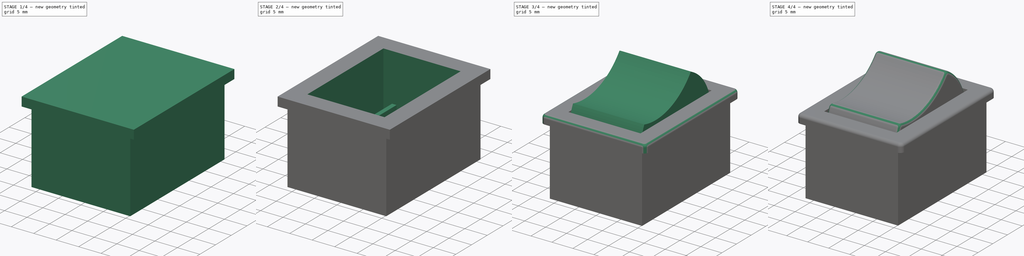
[diagram: build sequence overview — one tinted view per stage of 4, left to right]
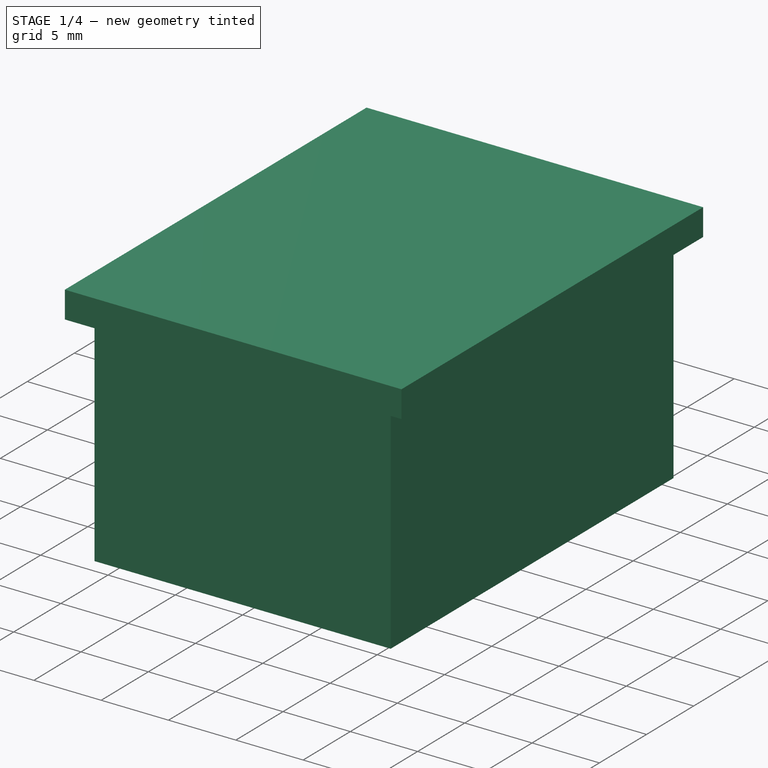
[diagram: stage 1 of 4 — iso view after this stage's code; geometry added in this stage tinted green]
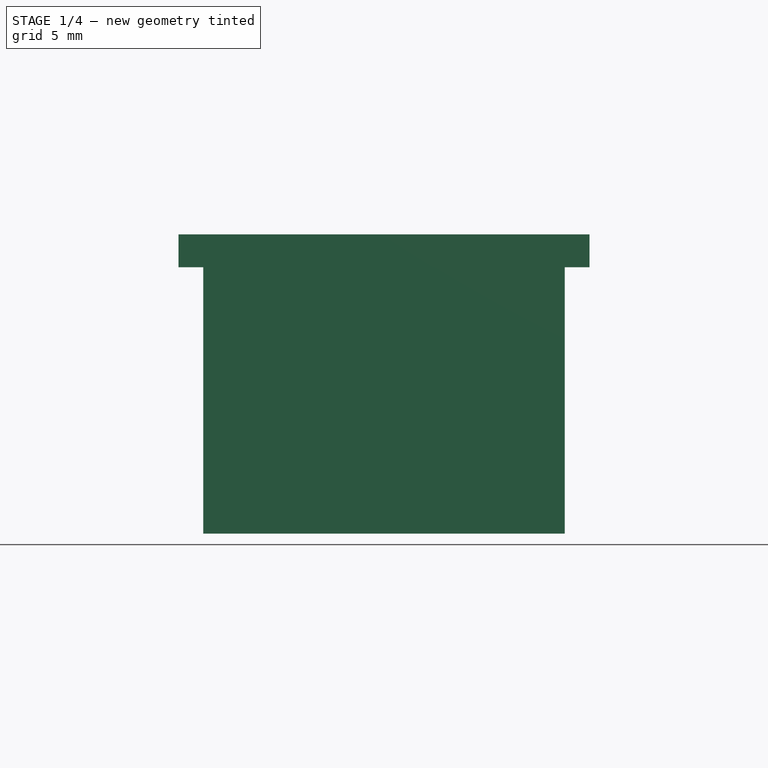
[diagram: stage 1 of 4 — front view after this stage's code; geometry added in this stage tinted green]
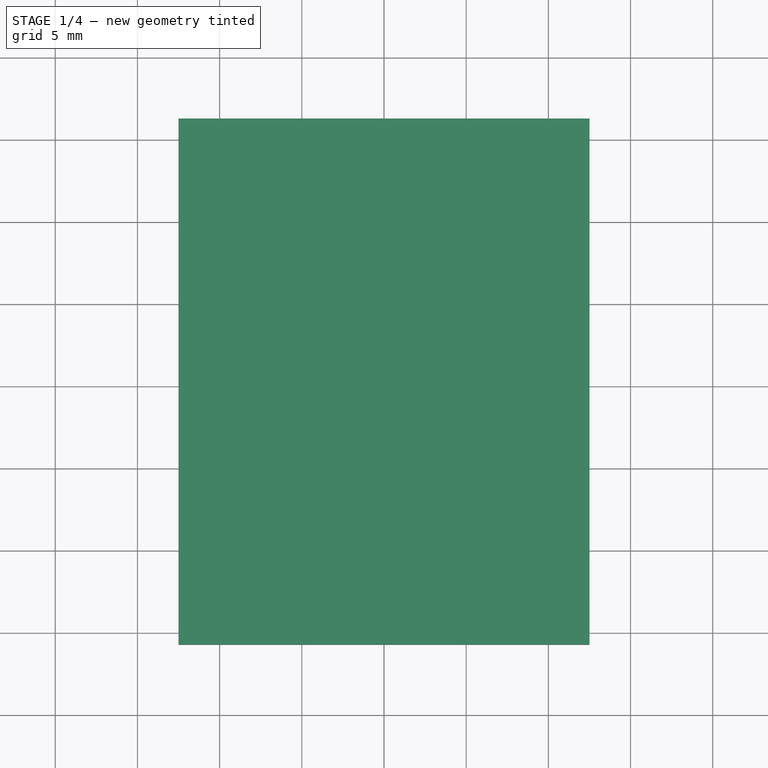
[diagram: stage 1 of 4 — top view after this stage's code; geometry added in this stage tinted green]
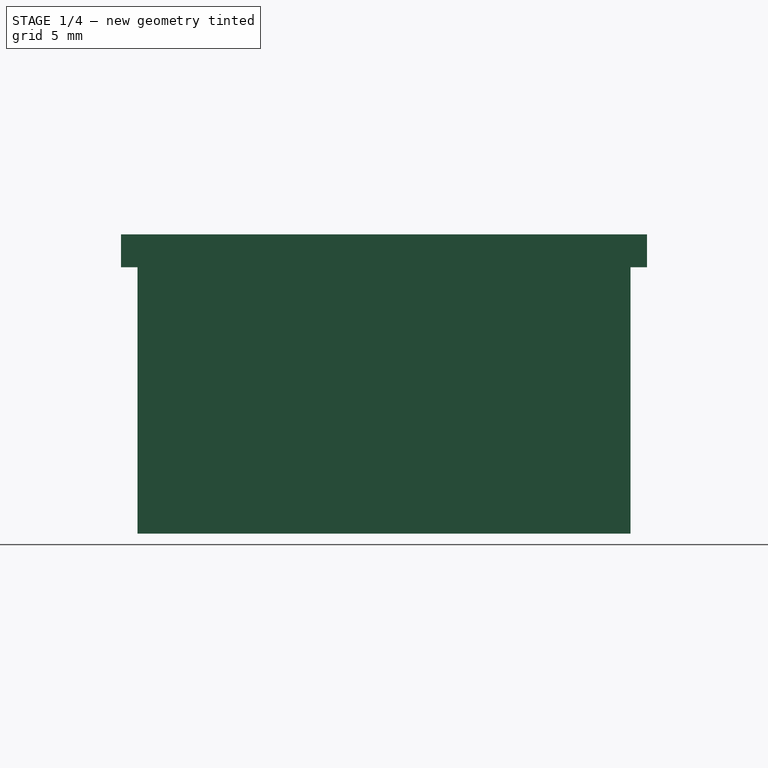
[diagram: stage 1 of 4 — right view after this stage's code; geometry added in this stage tinted green]
FCSTD DOCUMENT
Label: rocker_switch
objects: Sketcher::SketchObject×5, PartDesign::Pad×4, PartDesign::Fillet×4, PartDesign::Pocket×1
note: 19 computed .brp shape members not serialized (recipe doc carries the construction recipe); baked Part::Feature solids carry a one-line shape summary decoded from their .brp

FEATURE [Sketcher::SketchObject] Sketch
  sketch-geometry (4):
    g0: LineSegment StartX=-12.5 StartY=16 StartZ=0 EndX=12.5 EndY=16 EndZ=0
    g1: LineSegment StartX=12.5 StartY=16 StartZ=0 EndX=12.5 EndY=-16 EndZ=0
    g2: LineSegment StartX=12.5 StartY=-16 StartZ=0 EndX=-12.5 EndY=-16 EndZ=0
    g3: LineSegment StartX=-12.5 StartY=-16 StartZ=0 EndX=-12.5 EndY=16 EndZ=0
  constraints (11):
    c: Coincident(g0,g1)
    c: Coincident(g1,g2)
    c: Coincident(g2,g3)
    c: Coincident(g3,g0)
    c: Horizontal(g0)
    c: Horizontal(g2)
    c: Vertical(g1)
    c: Vertical(g3)
    c: Symmetric(g0,g1,g-1)
    c: DistanceY(g1) = -32
    c: DistanceX(g0) = 25
FEATURE [PartDesign::Pad] Pad
  Length = 2
  Length2 = 100
  Sketch = -> Sketch
  Type = 0
FEATURE [Sketcher::SketchObject] Sketch001
  Placement = pos=(0,0,0) rot=(1,0,0;3.14159rad)
  Support = -> Pad [Face5]
  sketch-geometry (4):
    g0: LineSegment StartX=-11 StartY=15 StartZ=0 EndX=11 EndY=15 EndZ=0
    g1: LineSegment StartX=11 StartY=15 StartZ=0 EndX=11 EndY=-15 EndZ=0
    g2: LineSegment StartX=11 StartY=-15 StartZ=0 EndX=-11 EndY=-15 EndZ=0
    g3: LineSegment StartX=-11 StartY=-15 StartZ=0 EndX=-11 EndY=15 EndZ=0
  constraints (11):
    c: Coincident(g0,g1)
    c: Coincident(g1,g2)
    c: Coincident(g2,g3)
    c: Coincident(g3,g0)
    c: Horizontal(g0)
    c: Horizontal(g2)
    c: Vertical(g1)
    c: Vertical(g3)
    c: Symmetric(g0,g1,g-1)
    c: DistanceX(g0) = 22
    c: DistanceY(g1) = -30
FEATURE [PartDesign::Pad] Pad001
  Length = 16.2
  Length2 = 100
  Sketch = -> Sketch001
  Type = 0
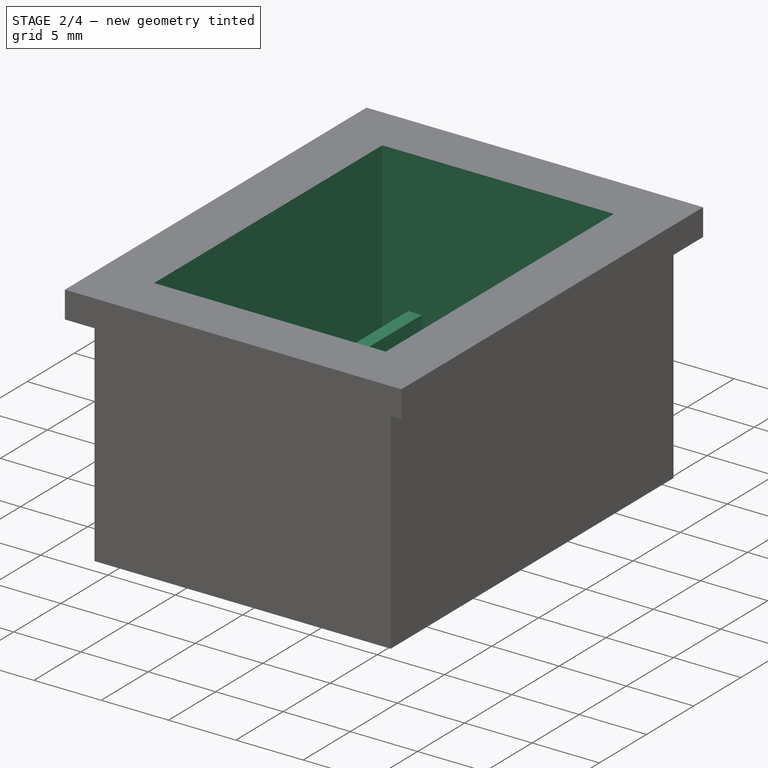
[diagram: stage 2 of 4 — iso view after this stage's code; geometry added in this stage tinted green]
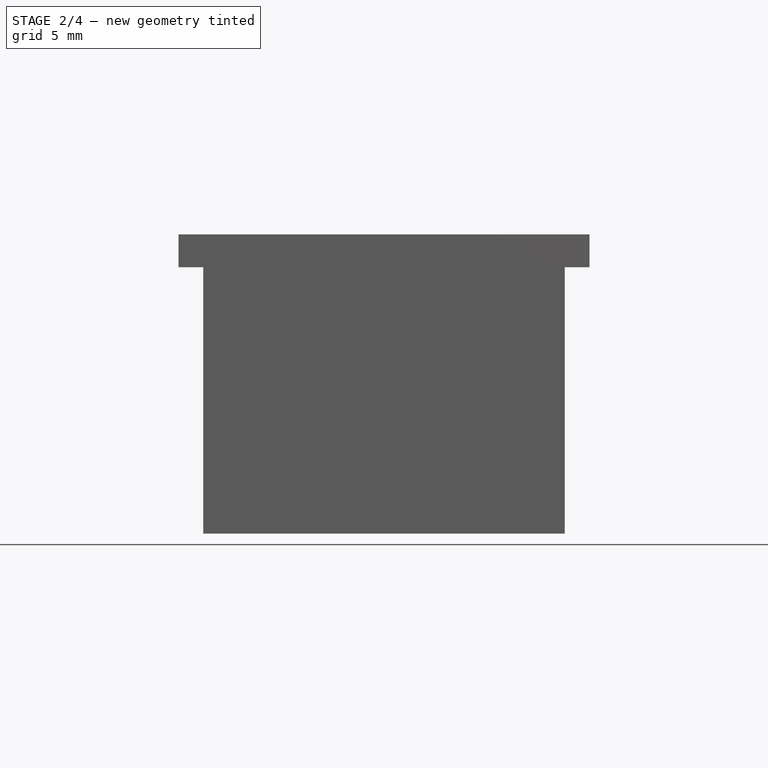
[diagram: stage 2 of 4 — front view after this stage's code; geometry added in this stage tinted green]
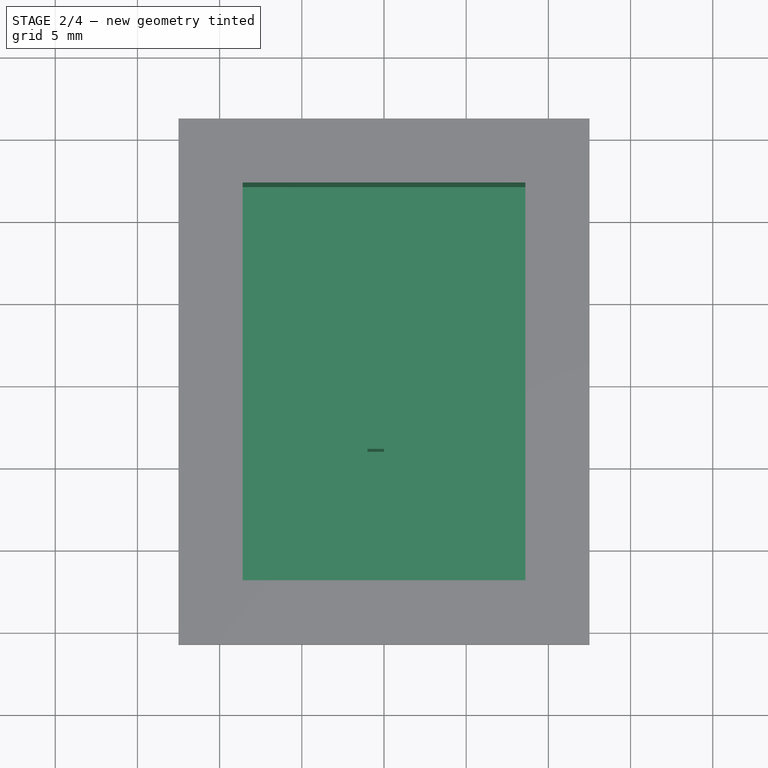
[diagram: stage 2 of 4 — top view after this stage's code; geometry added in this stage tinted green]
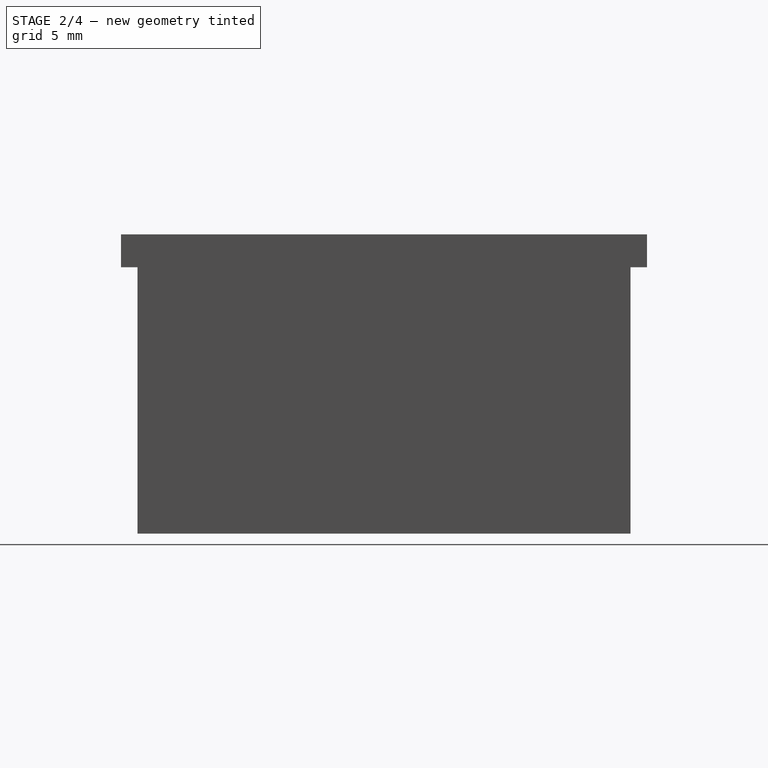
[diagram: stage 2 of 4 — right view after this stage's code; geometry added in this stage tinted green]
FEATURE [Sketcher::SketchObject] Sketch002
  ExternalGeometry = -> [Pad001]
  Placement = pos=(0,0,2) rot=(0,0,1;0rad)
  Support = -> Pad001 [Face5]
  sketch-geometry (4):
    g0: LineSegment StartX=-8.6 StartY=12.1 StartZ=0 EndX=8.6 EndY=12.1 EndZ=0
    g1: LineSegment StartX=8.6 StartY=12.1 StartZ=0 EndX=8.6 EndY=-12.1 EndZ=0
    g2: LineSegment StartX=8.6 StartY=-12.1 StartZ=0 EndX=-8.6 EndY=-12.1 EndZ=0
    g3: LineSegment StartX=-8.6 StartY=-12.1 StartZ=0 EndX=-8.6 EndY=12.1 EndZ=0
  constraints (11):
    c: Coincident(g0,g1)
    c: Coincident(g1,g2)
    c: Coincident(g2,g3)
    c: Coincident(g3,g0)
    c: Horizontal(g0)
    c: Horizontal(g2)
    c: Vertical(g1)
    c: Vertical(g3)
    c: Symmetric(g0,g1,g-1)
    c: DistanceY(g1,g-3) = -3.9
    c: DistanceX(g0) = 17.2
FEATURE [PartDesign::Pocket] Pocket
  Length = 16
  Sketch = -> Sketch002
  Type = 0
FEATURE [Sketcher::SketchObject] Sketch003
  Placement = pos=(0,0,-14) rot=(0,0,1;0rad)
  Support = -> Pocket [Face16]
  sketch-geometry (4):
    g0: LineSegment StartX=-1 StartY=4 StartZ=0 EndX=0 EndY=4 EndZ=0
    g1: LineSegment StartX=0 StartY=4 StartZ=0 EndX=0 EndY=-4 EndZ=0
    g2: LineSegment StartX=0 StartY=-4 StartZ=0 EndX=-1 EndY=-4 EndZ=0
    g3: LineSegment StartX=-1 StartY=-4 StartZ=0 EndX=-1 EndY=4 EndZ=0
  constraints (12):
    c: Coincident(g0,g1)
    c: Coincident(g1,g2)
    c: Coincident(g2,g3)
    c: Coincident(g3,g0)
    c: Horizontal(g0)
    c: Horizontal(g2)
    c: Vertical(g1)
    c: Vertical(g3)
    c: Symmetric(g2,g0,g-1)
    c: PointOnObject(g0,g-2)
    c: DistanceY(g1) = -8
    c: DistanceX(g0) = 1
FEATURE [PartDesign::Pad] Pad002
  Length = 10
  Length2 = 100
  Sketch = -> Sketch003
  Type = 0
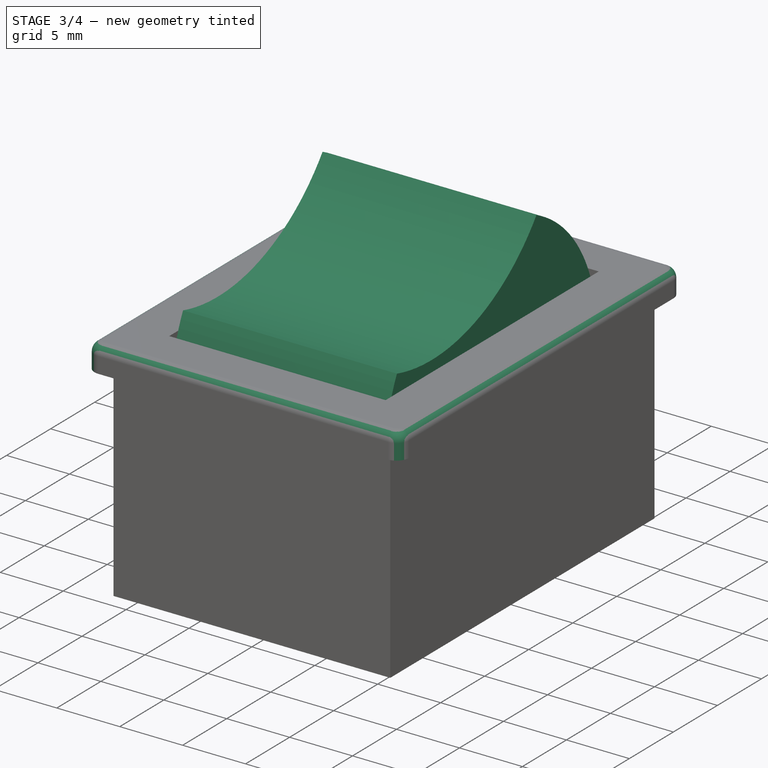
[diagram: stage 3 of 4 — iso view after this stage's code; geometry added in this stage tinted green]
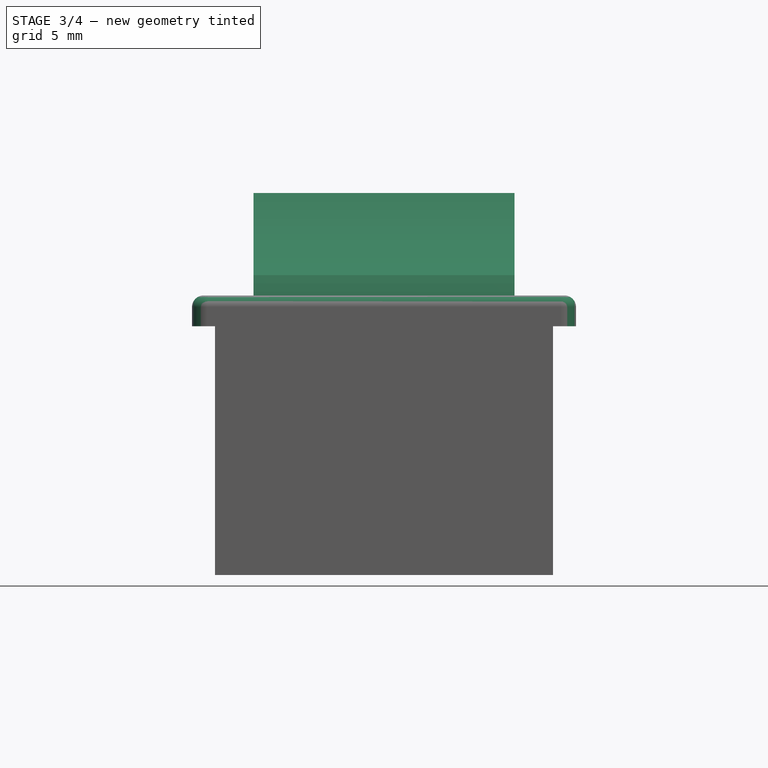
[diagram: stage 3 of 4 — front view after this stage's code; geometry added in this stage tinted green]
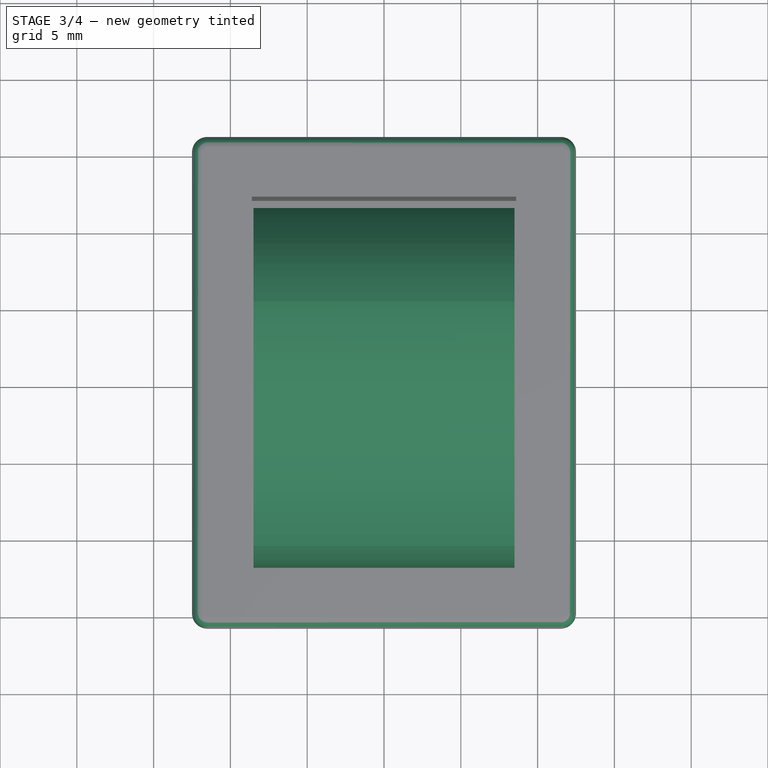
[diagram: stage 3 of 4 — top view after this stage's code; geometry added in this stage tinted green]
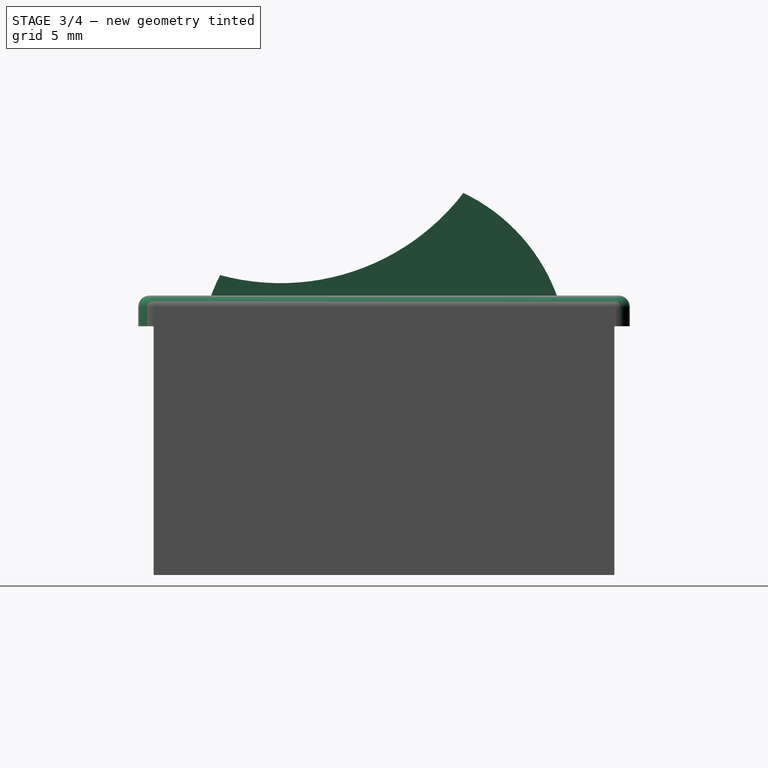
[diagram: stage 3 of 4 — right view after this stage's code; geometry added in this stage tinted green]
FEATURE [Sketcher::SketchObject] Sketch004
  Placement = pos=(0,0,0) rot=(0.57735,0.57735,0.57735;2.0944rad)
  Support = -> Pad002 [Face19]
  sketch-geometry (10):
    g0: LineSegment StartX=-1.42122 StartY=-2.62841 StartZ=0 EndX=0.611463 EndY=-8.6506 EndZ=0
    g1: ArcOfCircle CenterX=2.03269 CenterY=-8.17089 CenterZ=0 NormalX=0 NormalY=0 NormalZ=1 Radius=1.5 StartAngle=3.46712 EndAngle=6.60871
    g2: LineSegment StartX=3.45391 StartY=-7.69118 StartZ=0 EndX=1.42122 EndY=-1.66899 EndZ=0
    g3: LineSegment StartX=1.42122 StartY=-1.66899 StartZ=0 EndX=11.3627 EndY=1.6866 EndZ=0
    g4: LineSegment StartX=-1.42122 StartY=-2.62841 StartZ=0 EndX=-11.3627 EndY=-5.984 EndZ=0
    g5: LineSegment [constr] StartX=-1.42122 StartY=-2.62841 StartZ=0 EndX=1.42122 EndY=-1.66899 EndZ=0
    g6: ArcOfCircle CenterX=0 CenterY=-2.1487 CenterZ=0 NormalX=0 NormalY=0 NormalZ=1 Radius=11.9925 StartAngle=0.325526 EndAngle=1.12518
    g7: ArcOfCircle CenterX=-6.73368 CenterY=17.801 CenterZ=0 NormalX=0 NormalY=0 NormalZ=1 Radius=15 StartAngle=4.44688 EndAngle=5.62895
    g8: ArcOfCircle CenterX=0 CenterY=-2.1487 CenterZ=0 NormalX=0 NormalY=0 NormalZ=1 Radius=11.9925 StartAngle=2.66747 EndAngle=3.46712
    g9: LineSegment [constr] StartX=-10.6697 StartY=3.32661 StartZ=0 EndX=5.16901 EndY=8.67269 EndZ=0
  constraints (28):
    c: Tangent(g0,g1)
    c: Tangent(g1,g2)
    c: Parallel(g2,g0)
    c: Equal(g2,g0)
    c: Coincident(g3,g2)
    c: Coincident(g4,g0)
    c: Perpendicular(g4,g0)
    c: Tangent(g4,g3)
    c: Equal(g4,g3)
    c: Coincident(g5,g0)
    c: Coincident(g5,g2)
    c: Coincident(g6,g3)
    c: DistanceX(g3) = 11.3627
    c: DistanceY(g3) = 1.6866
    c: Angle(g4) = -2.81607
    c: Coincident(g8,g6)
    c: Coincident(g8,g4)
    c: Coincident(g8,g7)
    c: Coincident(g9,g7)
    c: Coincident(g9,g6)
    c: Parallel(g9,g4)
    c: Symmetric(g2,g0,g6)
    c: Radius(g7) = 15
    c: Coincident(g7,g6)
    c: Distance(g7,g4) = 8.6
    c: PointOnObject(g6,g-2)
    c: Radius(g1) = 1.5
    c: Distance(g2) = 6.35598
FEATURE [PartDesign::Pad] Pad003
  Length = 17
  Length2 = 100
  Midplane = true
  Sketch = -> Sketch004
  Type = 0
FEATURE [PartDesign::Fillet] Fillet
  Base = -> Pad003 [Edge5,Edge8,Edge2,Edge1]
  Radius = 1
FEATURE [PartDesign::Fillet] Fillet001
  Base = -> Fillet [Edge24]
  Radius = 0.75
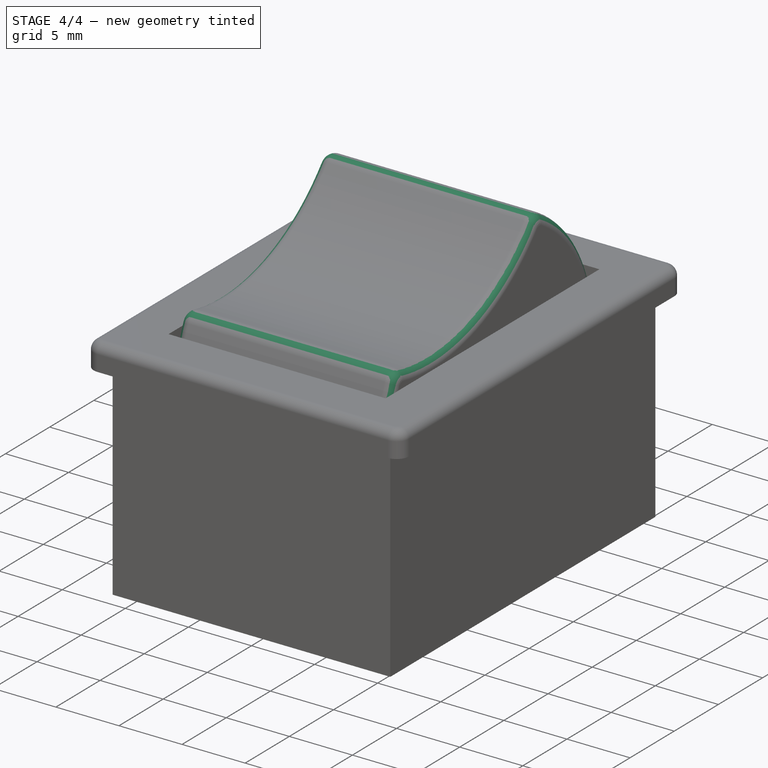
[diagram: stage 4 of 4 — iso view after this stage's code; geometry added in this stage tinted green]
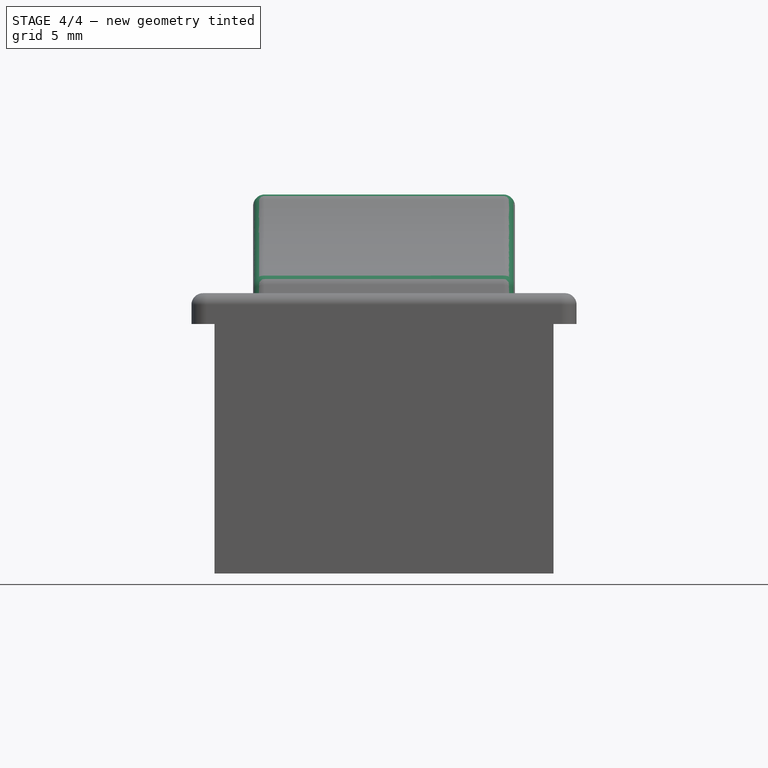
[diagram: stage 4 of 4 — front view after this stage's code; geometry added in this stage tinted green]
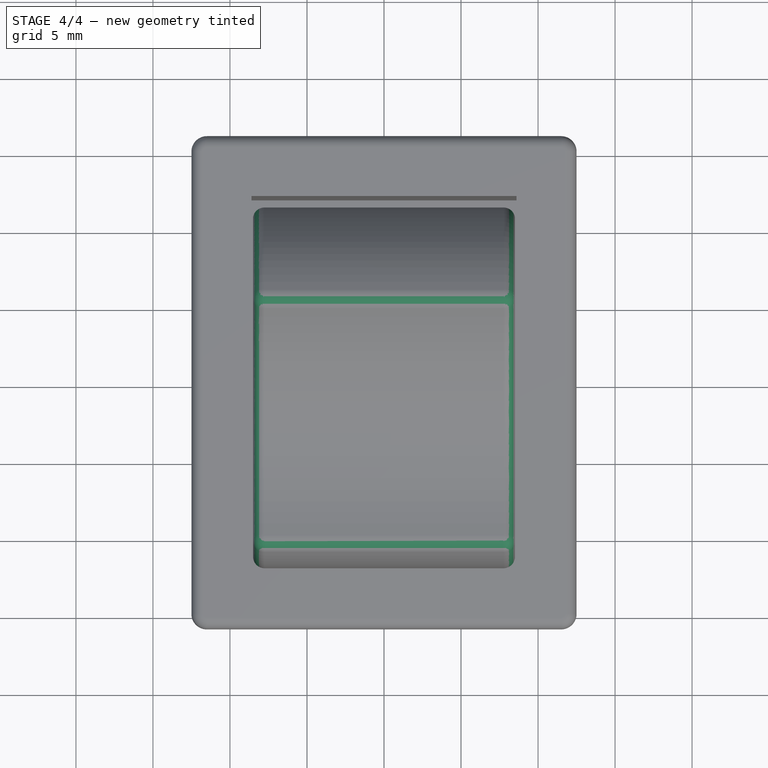
[diagram: stage 4 of 4 — top view after this stage's code; geometry added in this stage tinted green]
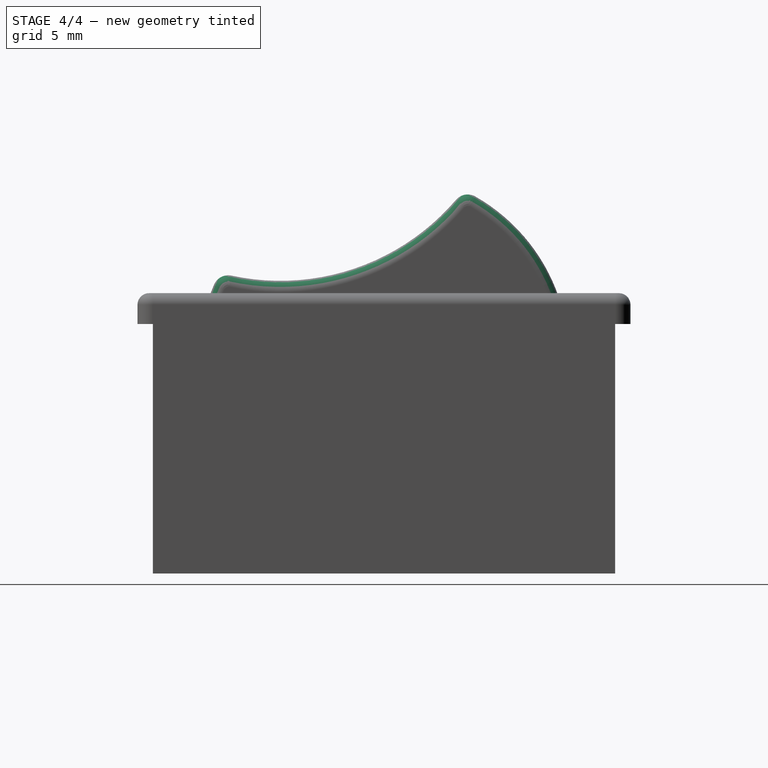
[diagram: stage 4 of 4 — right view after this stage's code; geometry added in this stage tinted green]
FEATURE [PartDesign::Fillet] Fillet002
  Base = -> Fillet001 [Edge111,Edge112]
  Radius = 1
FEATURE [PartDesign::Fillet] Fillet003
  Base = -> Fillet002 [Edge19,Edge4]
  Radius = 0.75
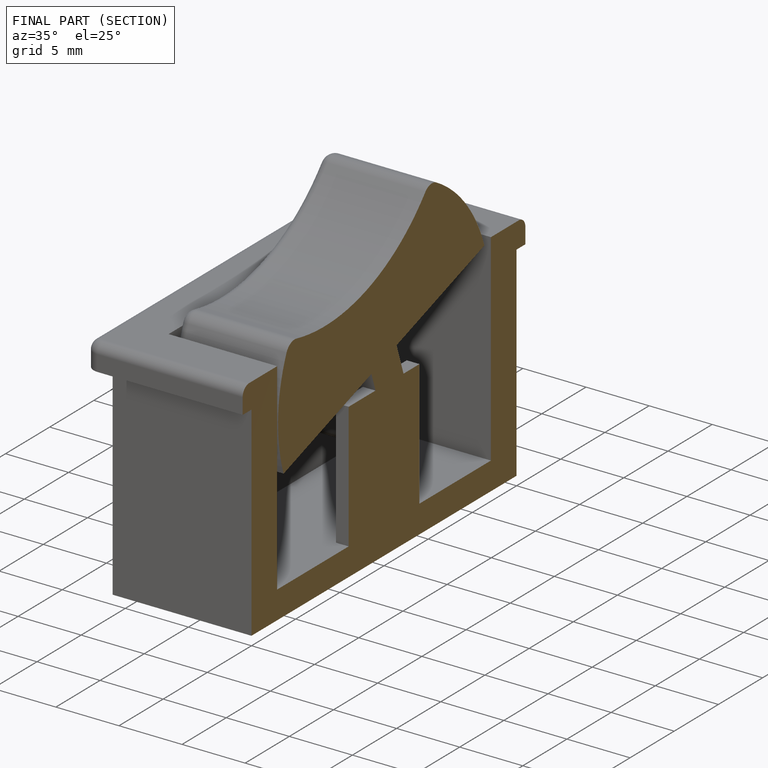
[diagram: finished part — half-section view (interior)]
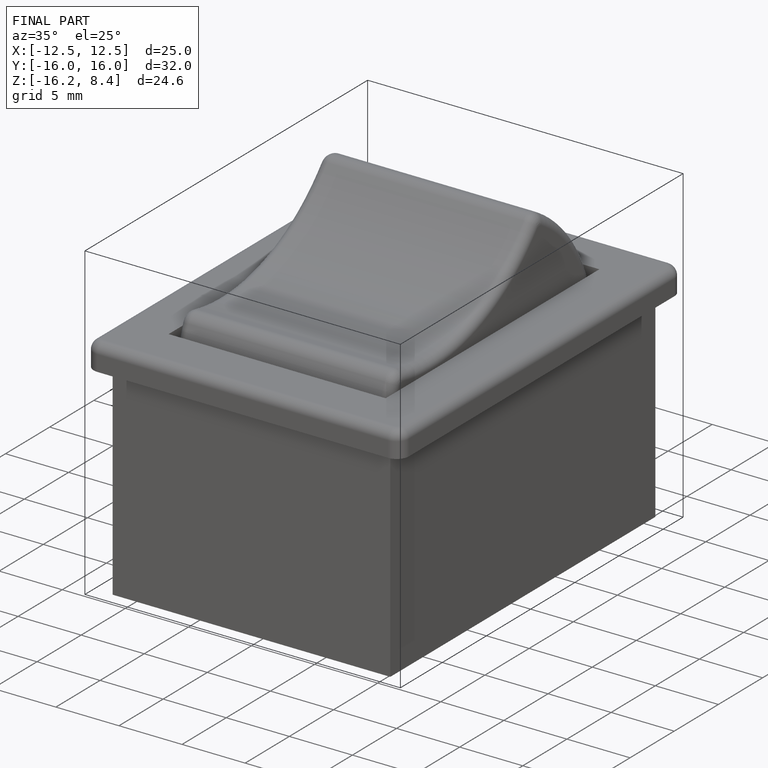
[diagram: finished part — iso view with bounding-box wireframe]
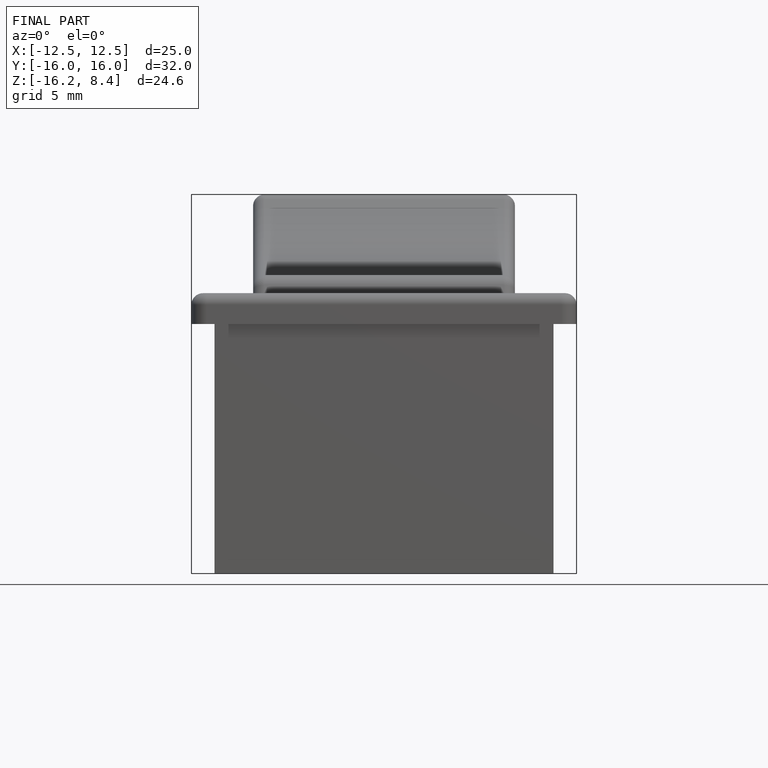
[diagram: finished part — front view with bounding-box wireframe]
